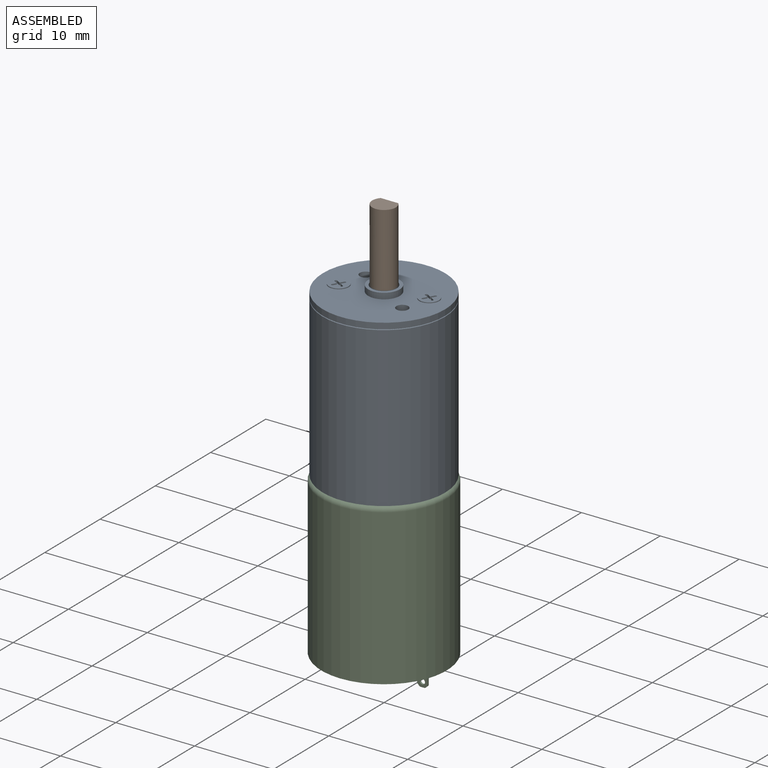
[diagram: assembled view]
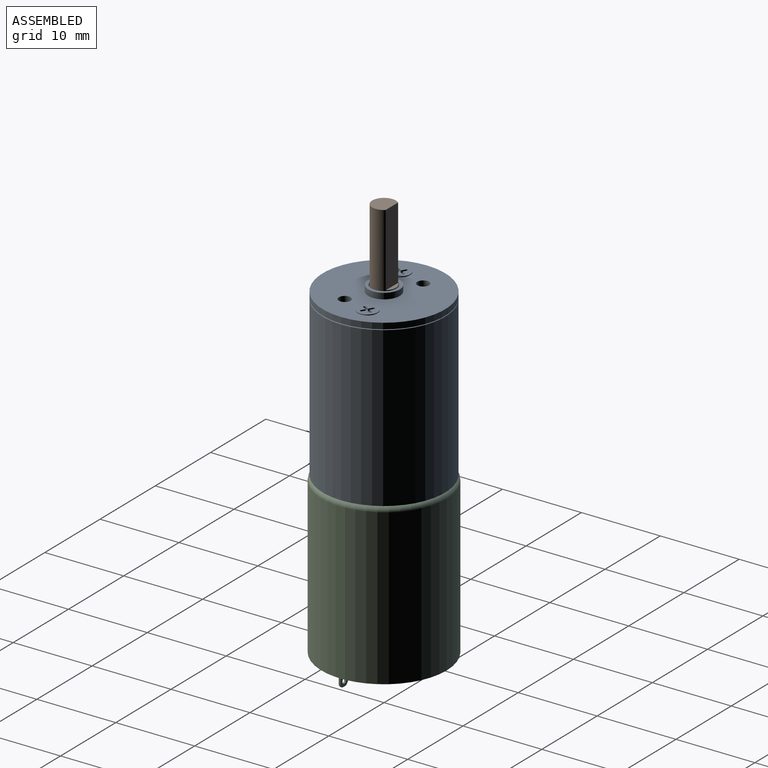
[diagram: assembled view, second angle]
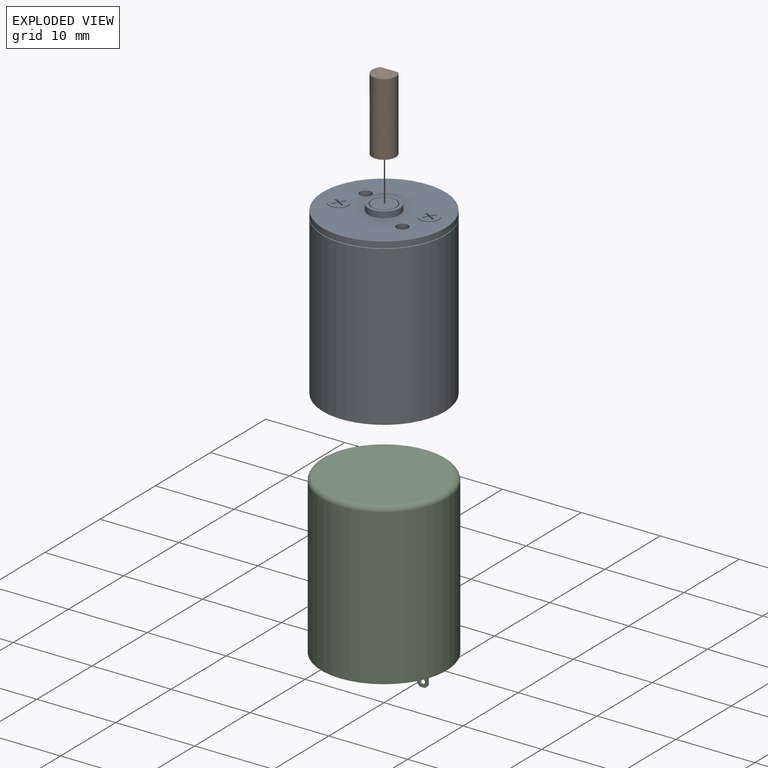
[diagram: exploded view]
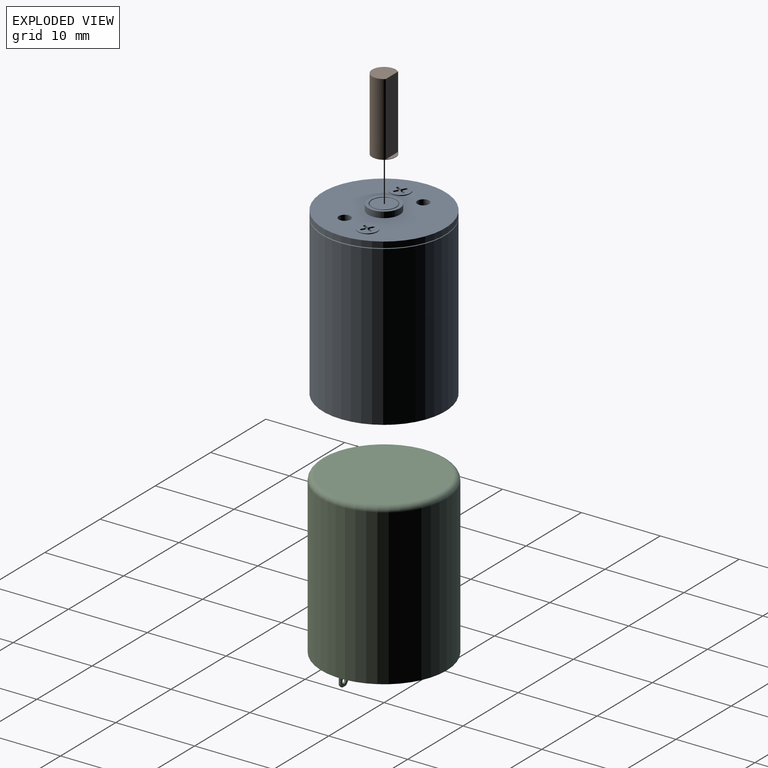
[diagram: exploded view, second angle]
ASSEMBLY  parts=3 mates=2
PART A: 106 faces, bbox 15.5x21.8x15.5 mm
  f0: cylinder r=1.5mm len=3mm, axis (0,-1,0), area 7.1mm2, adj f13,f104
  f1: cylinder r=1.25mm len=2.5mm, axis (0,1,0), area 0.8mm2, adj f15,f62
  f2: cylinder r=1.25mm len=2.5mm, axis (0,1,0), area 0.8mm2, adj f15,f20
  f3: cylinder r=7.75mm len=20.15mm, axis (0,-1,0), area 981.2mm2, adj f4,f105
  f4: cone r=7.65mm half-angle=63.4deg, axis (0,1,0), area 5.4mm2, adj f3,f5
  f5: cone r=7.75mm half-angle=63.4deg, axis (0,-1,0), area 5.4mm2, adj f4,f12
  f6: cylinder r=1.75mm len=3.65mm, axis (0,-1,0), area 40.1mm2, adj f18,f19
  f7: cylinder r=1.75mm len=3.65mm, axis (0,-1,0), area 40.1mm2, adj f16,f17
  f8: cylinder r=0.75mm len=2.85mm, axis (0,-1,0), area 13.4mm2, adj f15,f18
  f9: cylinder r=0.75mm len=2.85mm, axis (0,-1,0), area 13.4mm2, adj f15,f16
  f10: cylinder r=2mm len=4mm, axis (0,1,0), area 9.4mm2, adj f14,f15
  f11: cylinder r=1.6mm len=3.2mm, axis (0,1,0), area 7.5mm2, adj f13,f14
  f12: cylinder r=7.75mm len=15.5mm, axis (0,-1,0), area 36.5mm2, adj f5,f15
  f13: plane 3.2x3.2mm, normal (0,-1,0), area 1mm2, adj f0,f11
  f14: plane 4x4mm, normal (0,-1,0), area 4.5mm2, adj f10,f11
  f15: plane 15.5x15.5mm, normal (0,-1,0), area 162.8mm2, adj f1,f2,f8,f9,f10,f12
  f16: plane 3.5x3.5mm, normal (0,1,0), area 7.9mm2, adj f7,f9
  f17: plane 3.5x3.5mm, normal (0,-1,0), area 9.6mm2, adj f7
  f18: plane 3.5x3.5mm, normal (0,1,0), area 7.9mm2, adj f6,f8
  f19: plane 3.5x3.5mm, normal (0,-1,0), area 9.6mm2, adj f6
  f20: plane 2.5x2.5mm, normal (0,-1,0), area 4mm2, adj f2,f21,f22,f23,f24,f25,f26,f27
  f21: plane 0.52x0.3mm, normal (0.5,0,0.87), area 0.2mm2, adj f20,f32,f57,f58
  f22: plane 0.3x0.09mm, normal (0.87,0,-0.5), area 0mm2, adj f20,f55,f58,f61
  f23: plane 0.52x0.3mm, normal (-0.5,0,-0.87), area 0.2mm2, adj f20,f24,f55,f56
  f24: plane 0.52x0.3mm, normal (0.87,0,-0.5), area 0.2mm2, adj f20,f23,f47,f53
  f25: plane 0.3x0.09mm, normal (-0.5,0,-0.87), area 0mm2, adj f20,f41,f47,f48
  f26: plane 0.52x0.3mm, normal (-0.87,0,0.5), area 0.2mm2, adj f20,f27,f41,f42
  f27: plane 0.52x0.3mm, normal (-0.5,0,-0.87), area 0.2mm2, adj f20,f26,f34,f39
  f28: plane 0.3x0.09mm, normal (-0.87,0,0.5), area 0mm2, adj f20,f34,f35,f36
  f29: plane 0.52x0.3mm, normal (0.5,0,0.87), area 0.2mm2, adj f20,f30,f36,f40
  f30: plane 0.52x0.3mm, normal (-0.87,0,0.5), area 0.2mm2, adj f20,f29,f43,f44
  f31: plane 0.3x0.09mm, normal (0.5,0,0.87), area 0mm2, adj f20,f44,f49,f50
  f32: plane 0.52x0.3mm, normal (0.87,0,-0.5), area 0.2mm2, adj f20,f21,f50,f54
  f33: plane 1.35x1.35mm, normal (0,-1,0), area 0.3mm2, adj f35,f39,f40,f42,f43,f48,f49,f53
  f34: plane 0.3x0.14mm, normal (-0.97,0,-0.26), area 0mm2, adj f20,f27,f28,f37
  f35: plane 0.14x0.14mm, normal (-0.61,-0.71,0.35), area 0mm2, adj f28,f33,f37,f38
  f36: plane 0.3x0.14mm, normal (-0.26,0,0.97), area 0mm2, adj f20,f28,f29,f38
  f37: plane 0.14x0.1mm, normal (-0.79,-0.58,-0.21), area 0mm2, adj f34,f35,f39
  f38: plane 0.14x0.1mm, normal (-0.21,-0.58,0.79), area 0mm2, adj f35,f36,f40
  f39: plane 0.66x0.39mm, normal (-0.35,-0.71,-0.61), area 0.1mm2, adj f27,f33,f37,f42
  f40: plane 0.61x0.44mm, normal (0.35,-0.71,0.61), area 0.1mm2, adj f29,f33,f38,f43
  f41: plane 0.3x0.14mm, normal (-0.97,0,-0.26), area 0mm2, adj f20,f25,f26,f45
  f42: plane 0.61x0.44mm, normal (-0.61,-0.71,0.35), area 0.1mm2, adj f26,f33,f39,f45
  f43: plane 0.66x0.39mm, normal (-0.61,-0.71,0.35), area 0.1mm2, adj f30,f33,f40,f46
  f44: plane 0.3x0.14mm, normal (-0.26,0,0.97), area 0mm2, adj f20,f30,f31,f46
  f45: plane 0.14x0.1mm, normal (-0.79,-0.58,-0.21), area 0mm2, adj f41,f42,f48
  f46: plane 0.14x0.1mm, normal (-0.21,-0.58,0.79), area 0mm2, adj f43,f44,f49
  f47: plane 0.3x0.14mm, normal (0.26,0,-0.97), area 0mm2, adj f20,f24,f25,f51
  f48: plane 0.14x0.14mm, normal (-0.35,-0.71,-0.61), area 0mm2, adj f25,f33,f45,f51
  f49: plane 0.14x0.14mm, normal (0.35,-0.71,0.61), area 0mm2, adj f31,f33,f46,f52
  f50: plane 0.3x0.14mm, normal (0.97,0,0.26), area 0mm2, adj f20,f31,f32,f52
  f51: plane 0.14x0.1mm, normal (0.21,-0.58,-0.79), area 0mm2, adj f47,f48,f53
  f52: plane 0.14x0.1mm, normal (0.79,-0.58,0.21), area 0mm2, adj f49,f50,f54
  f53: plane 0.66x0.39mm, normal (0.61,-0.71,-0.35), area 0.1mm2, adj f24,f33,f51,f56
  f54: plane 0.61x0.44mm, normal (0.61,-0.71,-0.35), area 0.1mm2, adj f32,f33,f52,f57
  f55: plane 0.3x0.14mm, normal (0.26,0,-0.97), area 0mm2, adj f20,f22,f23,f59
  f56: plane 0.61x0.44mm, normal (-0.35,-0.71,-0.61), area 0.1mm2, adj f23,f33,f53,f59
  f57: plane 0.66x0.39mm, normal (0.35,-0.71,0.61), area 0.1mm2, adj f21,f33,f54,f60
  f58: plane 0.3x0.14mm, normal (0.97,0,0.26), area 0mm2, adj f20,f21,f22,f60
  f59: plane 0.14x0.1mm, normal (0.21,-0.58,-0.79), area 0mm2, adj f55,f56,f61
  f60: plane 0.14x0.1mm, normal (0.79,-0.58,0.21), area 0mm2, adj f57,f58,f61
  f61: plane 0.14x0.14mm, normal (0.61,-0.71,-0.35), area 0mm2, adj f22,f33,f59,f60
  f62: plane 2.5x2.5mm, normal (0,-1,0), area 4mm2, adj f1,f63,f64,f65,f66,f67,f68,f69
  f63: plane 0.52x0.3mm, normal (-0.5,0,-0.87), area 0.2mm2, adj f62,f74,f99,f100
  f64: plane 0.3x0.09mm, normal (-0.87,0,0.5), area 0mm2, adj f62,f97,f100,f103
  f65: plane 0.52x0.3mm, normal (0.5,0,0.87), area 0.2mm2, adj f62,f66,f97,f98
  f66: plane 0.52x0.3mm, normal (-0.87,0,0.5), area 0.2mm2, adj f62,f65,f89,f95
  f67: plane 0.3x0.09mm, normal (0.5,0,0.87), area 0mm2, adj f62,f83,f89,f90
  f68: plane 0.52x0.3mm, normal (0.87,0,-0.5), area 0.2mm2, adj f62,f69,f83,f84
  f69: plane 0.52x0.3mm, normal (0.5,0,0.87), area 0.2mm2, adj f62,f68,f76,f81
  f70: plane 0.3x0.09mm, normal (0.87,0,-0.5), area 0mm2, adj f62,f76,f77,f78
  f71: plane 0.52x0.3mm, normal (-0.5,0,-0.87), area 0.2mm2, adj f62,f72,f78,f82
  f72: plane 0.52x0.3mm, normal (0.87,0,-0.5), area 0.2mm2, adj f62,f71,f85,f86
  f73: plane 0.3x0.09mm, normal (-0.5,0,-0.87), area 0mm2, adj f62,f86,f91,f92
  f74: plane 0.52x0.3mm, normal (-0.87,0,0.5), area 0.2mm2, adj f62,f63,f92,f96
  f75: plane 1.35x1.35mm, normal (0,-1,0), area 0.3mm2, adj f77,f81,f82,f84,f85,f90,f91,f95
  f76: plane 0.3x0.14mm, normal (0.97,0,0.26), area 0mm2, adj f62,f69,f70,f79
  f77: plane 0.14x0.14mm, normal (0.61,-0.71,-0.35), area 0mm2, adj f70,f75,f79,f80
  f78: plane 0.3x0.14mm, normal (0.26,0,-0.97), area 0mm2, adj f62,f70,f71,f80
  f79: plane 0.14x0.1mm, normal (0.79,-0.58,0.21), area 0mm2, adj f76,f77,f81
  f80: plane 0.14x0.1mm, normal (0.21,-0.58,-0.79), area 0mm2, adj f77,f78,f82
  f81: plane 0.66x0.39mm, normal (0.35,-0.71,0.61), area 0.1mm2, adj f69,f75,f79,f84
  f82: plane 0.61x0.44mm, normal (-0.35,-0.71,-0.61), area 0.1mm2, adj f71,f75,f80,f85
  f83: plane 0.3x0.14mm, normal (0.97,0,0.26), area 0mm2, adj f62,f67,f68,f87
  f84: plane 0.61x0.44mm, normal (0.61,-0.71,-0.35), area 0.1mm2, adj f68,f75,f81,f87
  f85: plane 0.66x0.39mm, normal (0.61,-0.71,-0.35), area 0.1mm2, adj f72,f75,f82,f88
  f86: plane 0.3x0.14mm, normal (0.26,0,-0.97), area 0mm2, adj f62,f72,f73,f88
  f87: plane 0.14x0.1mm, normal (0.79,-0.58,0.21), area 0mm2, adj f83,f84,f90
  f88: plane 0.14x0.1mm, normal (0.21,-0.58,-0.79), area 0mm2, adj f85,f86,f91
  f89: plane 0.3x0.14mm, normal (-0.26,0,0.97), area 0mm2, adj f62,f66,f67,f93
  f90: plane 0.14x0.14mm, normal (0.35,-0.71,0.61), area 0mm2, adj f67,f75,f87,f93
  f91: plane 0.14x0.14mm, normal (-0.35,-0.71,-0.61), area 0mm2, adj f73,f75,f88,f94
  f92: plane 0.3x0.14mm, normal (-0.97,0,-0.26), area 0mm2, adj f62,f73,f74,f94
  f93: plane 0.14x0.1mm, normal (-0.21,-0.58,0.79), area 0mm2, adj f89,f90,f95
  f94: plane 0.14x0.1mm, normal (-0.79,-0.58,-0.21), area 0mm2, adj f91,f92,f96
  f95: plane 0.66x0.39mm, normal (-0.61,-0.71,0.35), area 0.1mm2, adj f66,f75,f93,f98
  f96: plane 0.61x0.44mm, normal (-0.61,-0.71,0.35), area 0.1mm2, adj f74,f75,f94,f99
  f97: plane 0.3x0.14mm, normal (-0.26,0,0.97), area 0mm2, adj f62,f64,f65,f101
  f98: plane 0.61x0.44mm, normal (0.35,-0.71,0.61), area 0.1mm2, adj f65,f75,f95,f101
  f99: plane 0.66x0.39mm, normal (-0.35,-0.71,-0.61), area 0.1mm2, adj f63,f75,f96,f102
  f100: plane 0.3x0.14mm, normal (-0.97,0,-0.26), area 0mm2, adj f62,f63,f64,f102
  f101: plane 0.14x0.1mm, normal (-0.21,-0.58,0.79), area 0mm2, adj f97,f98,f103
  f102: plane 0.14x0.1mm, normal (-0.79,-0.58,-0.21), area 0mm2, adj f99,f100,f103
  f103: plane 0.14x0.14mm, normal (-0.61,-0.71,0.35), area 0mm2, adj f64,f75,f101,f102
  f104: plane 3x3mm, normal (0,-1,0), area 7.1mm2, adj f0
  f105: plane 15.5x15.5mm, normal (0,1,0), area 188.7mm2, adj f3
PART B: 5 faces, bbox 3x9.3x3 mm
  f0: plane 3x2.5mm, normal (0,-1,0), area 6.3mm2, adj f1,f3
  f1: plane 9.2x2.24mm, normal (0,0,1), area 20.6mm2, adj f0,f2,f3
  f2: plane 2.24x0.5mm, normal (0,-1,0), area 0.8mm2, adj f1,f3
  f3: cylinder r=1.5mm len=9.25mm, axis (0,-1,0), area 64mm2, adj f0,f1,f2,f4
  f4: plane 3x3mm, normal (0,1,0), area 7.1mm2, adj f3
PART C: 36 faces, bbox 17.2x17.2x22.4 mm
  f0: cylinder r=0.33mm len=6.56mm, axis (0,0,-1), area 6.8mm2, adj f4,f5,f11,f35
  f1: cylinder r=0.33mm len=6.56mm, axis (0,0,-1), area 6.8mm2, adj f4,f5,f11,f33
  f2: cylinder r=2.13mm len=4.26mm, axis (0,0,1), area 10.5mm2, adj f3,f31
  f3: torus R=1.48mm, axis (0,0,-1), area 12.3mm2, adj f2,f30
  f4: cylinder r=2.46mm len=6.69mm, axis (0,0,-1), area 29.4mm2, adj f0,f1,f11,f29,f31,f32,f33,f34
  f5: cylinder r=3.11mm len=6.69mm, axis (0,0,-1), area 37.2mm2, adj f0,f1,f11,f16,f29,f32,f33,f34
  f6: cylinder r=0.33mm len=0.66mm, axis (0,1,0), area 0.5mm2, adj f12,f13
  f7: cylinder r=0.33mm len=0.66mm, axis (0,1,0), area 0.5mm2, adj f14,f15
  f8: cylinder r=7.67mm len=15.34mm, axis (0,0,-1), area 28.4mm2, adj f16,f18
  f9: torus R=7.28mm, axis (0,0,1), area 49.8mm2, adj f10,f17
  f10: cylinder r=7.93mm len=19.67mm, axis (0,0,-1), area 980.7mm2, adj f9,f18
  f11: plane 5.68x2.1mm, normal (0,0,-1), area 3.9mm2, adj f0,f1,f4,f5
  f12: plane 2.62x1.31mm, normal (0,1,0), area 3mm2, adj f6,f16,f22,f23,f24,f27,f28
  f13: plane 2.62x1.31mm, normal (0,-1,0), area 3mm2, adj f6,f16,f22,f23,f24,f27,f28
  f14: plane 2.62x1.31mm, normal (0,1,0), area 3mm2, adj f7,f16,f19,f20,f21,f25,f26
  f15: plane 2.62x1.31mm, normal (0,-1,0), area 3mm2, adj f7,f16,f19,f20,f21,f25,f26
  f16: plane 15.34x15.34mm, normal (0,0,-1), area 153.8mm2, adj f5,f8,f12,f13,f14,f15,f19,f20
  f17: plane 14.56x14.56mm, normal (0,0,1), area 166.4mm2, adj f9
  f18: plane 15.87x15.87mm, normal (0,0,-1), area 12.9mm2, adj f8,f10
  f19: plane 2.3x0.23mm, normal (-1,0,0), area 0.5mm2, adj f14,f15,f16,f26
  f20: plane 2.3x0.23mm, normal (1,0,0), area 0.5mm2, adj f14,f15,f16,f25
  f21: plane 0.66x0.23mm, normal (0,0,-1), area 0.2mm2, adj f14,f15,f25,f26
  f22: plane 2.3x0.23mm, normal (-1,0,0), area 0.5mm2, adj f12,f13,f16,f27
  f23: plane 2.3x0.23mm, normal (1,0,0), area 0.5mm2, adj f12,f13,f16,f28
  f24: plane 0.66x0.23mm, normal (0,0,-1), area 0.2mm2, adj f12,f13,f27,f28
  f25: plane 0.33x0.33mm, normal (0.71,0,-0.71), area 0.1mm2, adj f14,f15,f20,f21
  f26: plane 0.33x0.33mm, normal (-0.71,0,-0.71), area 0.1mm2, adj f14,f15,f19,f21
  f27: plane 0.33x0.33mm, normal (-0.71,0,-0.71), area 0.1mm2, adj f12,f13,f22,f24
  f28: plane 0.33x0.33mm, normal (0.71,0,-0.71), area 0.1mm2, adj f12,f13,f23,f24
  f29: plane 5.68x2.1mm, normal (0,0,-1), area 3.9mm2, adj f4,f5,f32,f34
  f30: plane 2.95x2.95mm, normal (0,0,-1), area 6.8mm2, adj f3
  f31: plane 4.92x4.92mm, normal (0,0,-1), area 4.7mm2, adj f2,f4
  f32: cylinder r=0.33mm len=6.56mm, axis (0,0,-1), area 6.8mm2, adj f4,f5,f29,f33
  f33: plane 2.95x0.9mm, normal (0,0,-1), area 1.9mm2, adj f1,f4,f5,f32
  f34: cylinder r=0.33mm len=6.56mm, axis (0,0,-1), area 6.8mm2, adj f4,f5,f29,f35
  f35: plane 2.95x0.9mm, normal (0,0,-1), area 1.9mm2, adj f0,f4,f5,f34
PLACE A rot(axis=(-1,0,0),90deg) t=(-26.5,0,-16.5)mm
PLACE B rot(axis=(-1,0,0),90deg) t=(-26.5,0,-16.5)mm
PLACE C t=(0,0,-41.33)mm
MATE fastened C.f2 <-> A.f0  axis (0,0,1) through (0,0,-21)mm
MATE revolute B.f3 <-> A.f3  axis (0,0,-1) through (0,0,0.75)mm
